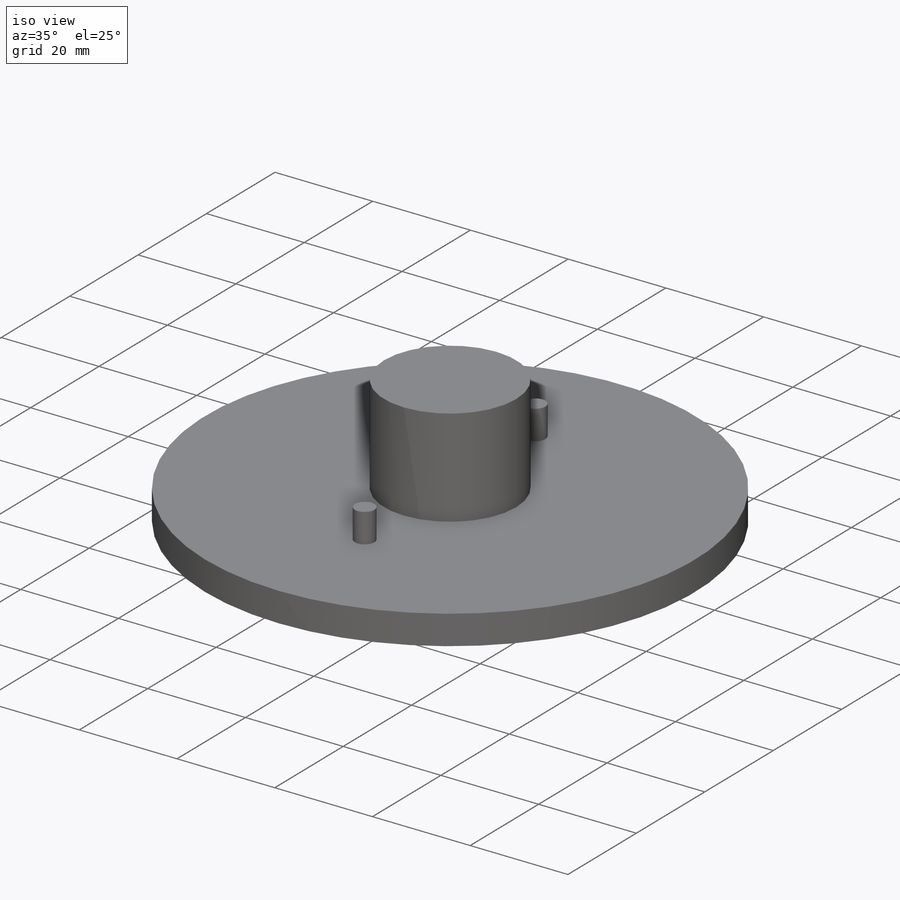
[diagram: iso view]
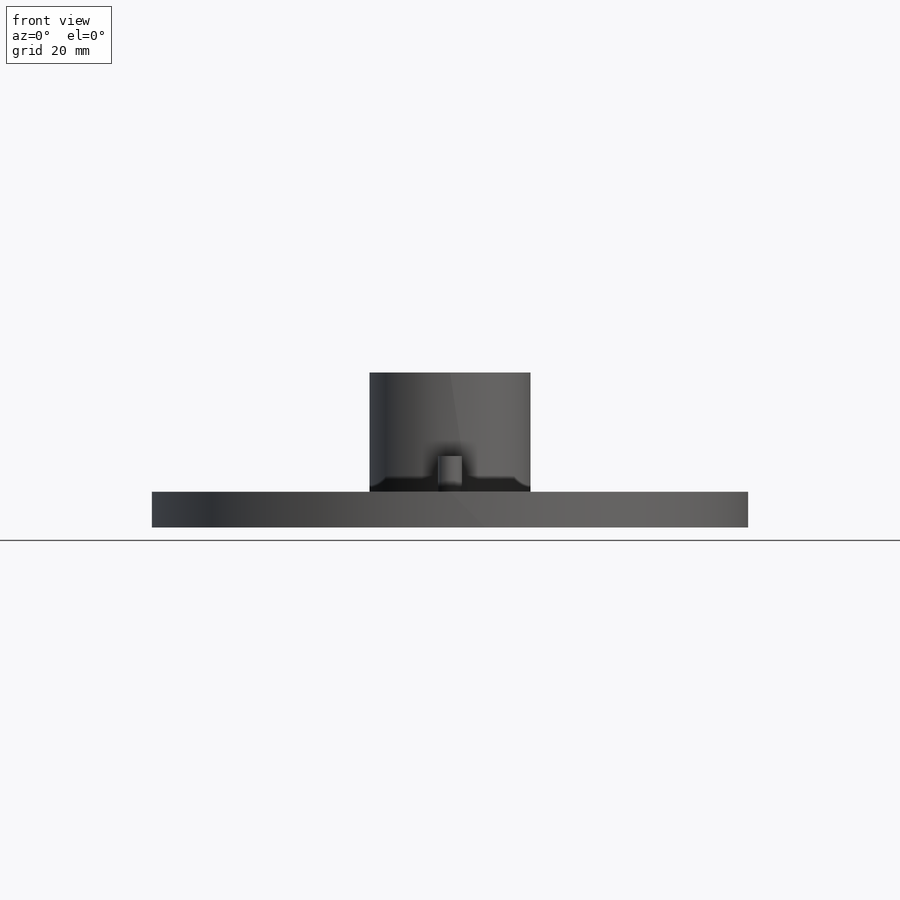
[diagram: front view]
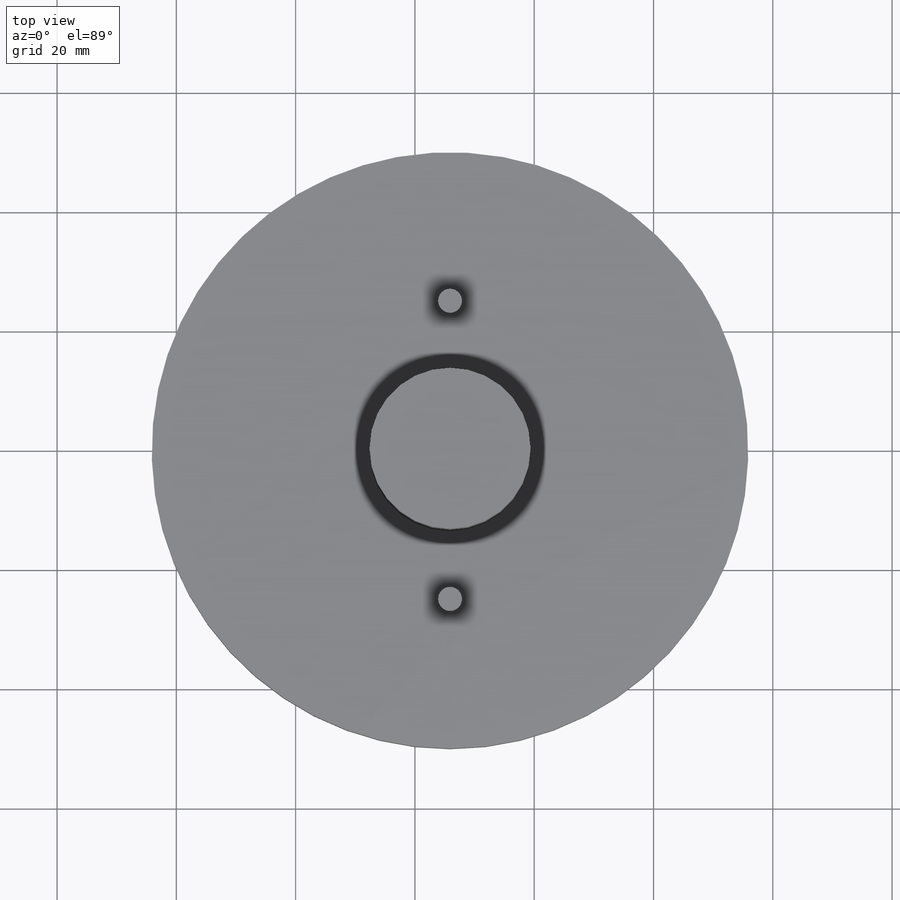
[diagram: top view]
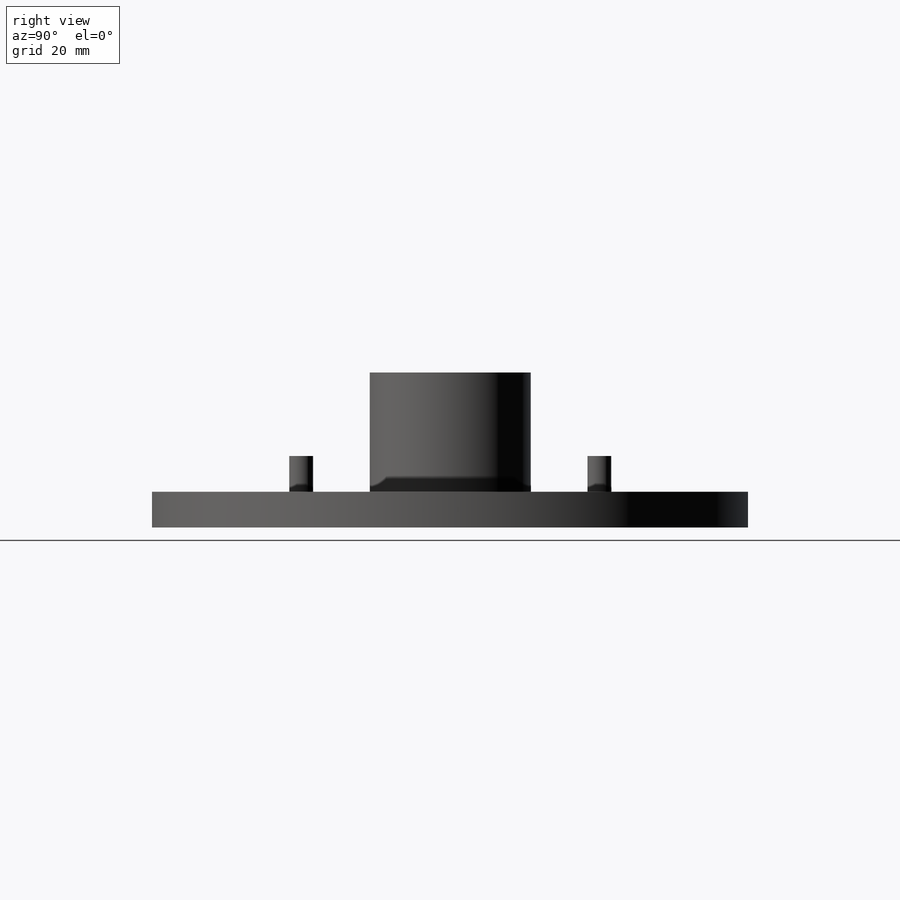
[diagram: right view]
SOLIDWORKS PART (.sldprt)
format: sldprt  version: not decoded by parser v0  size: 181,760 bytes
history: native  units: mm
features: plane x3, sketch x3, extrude x2, material x1, revolve x1 (+10 scaffold rows collapsed)
feature tree (20):
  scaffold x10  (default folders/planes/origin — collapsed)
  material  "Matériau <non spécifié>"
  plane  "Plan de face"
  plane  "Plan de dessus"
  plane  "Plan de droite"
  sketch  "Esquisse1"  dims[c1.D1=80.0mm c1.D2=6.0mm c1.D3=15.0mm c1.D4=15.0mm c1.D5=20.0mm c1.D6=~19.552601mm c1.D7=7.5mm c1.D8=~12.052601mm c2.D6=7.5mm c2.D8=15.0mm c2.D9=25.0mm c2.D1=32.5mm c2.D2=32.5mm c2.D3=25.0mm c2.D4=25.0mm c2.D5=30.0mm c3.D6=20.0mm c3.D7=6.0mm c3.D8=6.0mm c3.D9=15.0mm c3.D1=6.0mm c3.D2=25.0mm c3.D3=13.5mm c3.D4=8.5mm c3.D5=17.5mm c4.D2=50.0mm c4.D5=20.0mm c4.D6=~21.35286mm]
  revolve  "Révolution4"  Angle=360deg
  sketch  "Esquisse2"  dims[c1.D2=4.0mm c1.D4=27.0mm c1.D1=25.0mm c1.D3=25.0mm c2.D4=~24.080005mm]
  extrude  "Boss.-Extru.1"  Depth=6mm
  sketch  "Esquisse3"  dims[D1=2.0mm]
  extrude  "Boss.-Extru.2"  Depth=25mm
decode coverage: 6 of 6 modeling features carry decoded parameters
note: ~ marks probable driven/reference dimensions
note: suppression state not decoded; provenance and decode notes live in map.json
